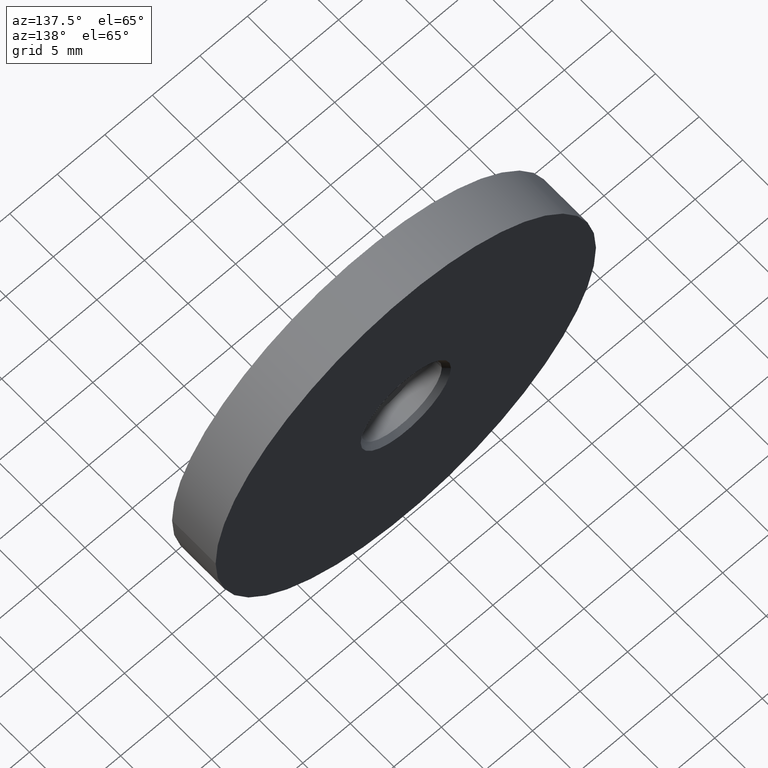
[diagram: clean part render]
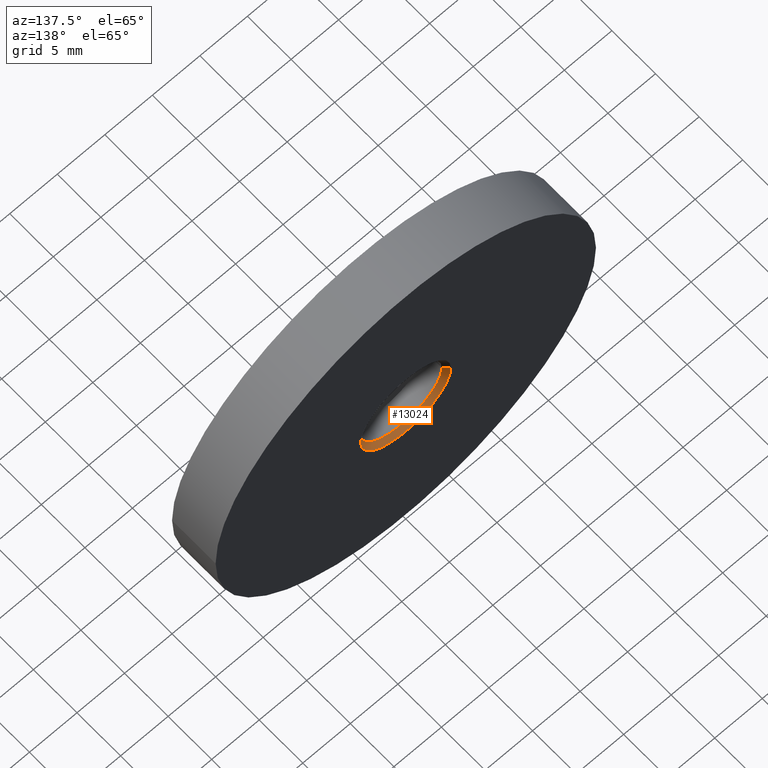
[diagram: same view with one face highlighted and labeled with its STEP entity id]
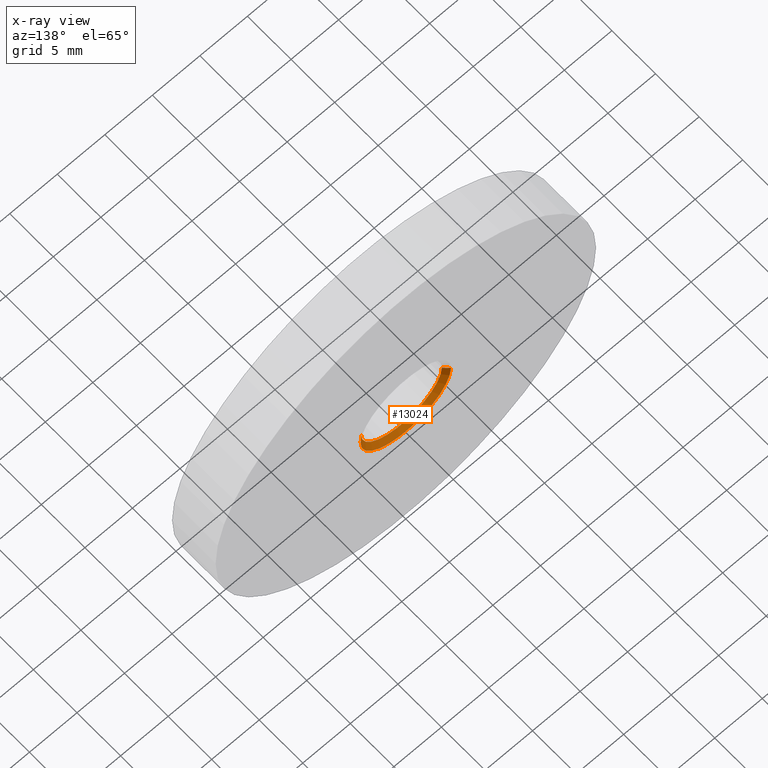
[diagram: x-ray of the same camera — body ghosted, the highlighted face saturated]
A machine part, auxiliary view. The second image highlights one B-rep face of the part: STEP entity #13024.
The next image is the same camera in x-ray: the body ghosted, the highlighted face saturated — about 0% of this face is hidden behind the body in this view.
In plain terms, the highlighted conical surface has half-angle 45 deg.
Its self-contained STEP definition (entity closure, byte-faithful):
#431 = EDGE_CURVE ( 'NONE', #12771, #11239, #8697, .T. ) ;
#717 = CARTESIAN_POINT ( 'NONE',  ( 4.750000000000014211, 4.999999999999984013, 5.817072295949937287E-16 ) ) ;
#813 = CARTESIAN_POINT ( 'NONE',  ( -4.250000000000000888, 4.499999999999997335, 0.000000000000000000 ) ) ;
#1665 = DIRECTION ( 'NONE',  ( -1.000000000000000000, 1.428595803745603429E-15, 0.000000000000000000 ) ) ;
#1824 = CARTESIAN_POINT ( 'NONE',  ( 6.938893903907218911E-15, 4.999999999999990230, 0.000000000000000000 ) ) ;
#1869 = DIRECTION ( 'NONE',  ( 1.387778780781446464E-15, 1.000000000000000000, -0.000000000000000000 ) ) ;
#2016 = ORIENTED_EDGE ( 'NONE', *, *, #13522, .F. ) ;
#2512 = VERTEX_POINT ( 'NONE', #11042 ) ;
#2601 = CARTESIAN_POINT ( 'NONE',  ( 4.250000000000013323, 4.499999999999984901, 5.510910596163098430E-16 ) ) ;
#3090 = EDGE_CURVE ( 'NONE', #7070, #12771, #11401, .T. ) ;
#3403 = AXIS2_PLACEMENT_3D ( 'NONE', #1824, #14288, #13101 ) ;
#3532 = VECTOR ( 'NONE', #8880, 1000.000000000000000 ) ;
#4444 = CARTESIAN_POINT ( 'NONE',  ( -4.750000000000000888, 4.999999999999997335, 0.000000000000000000 ) ) ;
#4866 = DIRECTION ( 'NONE',  ( 0.7071067811865491270, 0.7071067811865459074, 8.659560562354940254E-17 ) ) ;
#5855 = VECTOR ( 'NONE', #4866, 1000.000000000000000 ) ;
#6138 = DIRECTION ( 'NONE',  ( -1.000000000000000000, 1.428595803745603429E-15, 0.000000000000000000 ) ) ;
#6407 = CONICAL_SURFACE ( 'NONE', #11174, 4.250000000000007105, 0.7853981633974491672 ) ;
#6588 = LINE ( 'NONE', #813, #3532 ) ;
#7070 = VERTEX_POINT ( 'NONE', #2601 ) ;
#7354 = DIRECTION ( 'NONE',  ( 1.387778780781446464E-15, 1.000000000000000000, -0.000000000000000000 ) ) ;
#7931 = ORIENTED_EDGE ( 'NONE', *, *, #431, .T. ) ;
#8697 = CIRCLE ( 'NONE', #3403, 4.750000000000007994 ) ;
#8755 = ORIENTED_EDGE ( 'NONE', *, *, #11710, .F. ) ;
#8880 = DIRECTION ( 'NONE',  ( -0.7071067811865471286, 0.7071067811865479058, 0.000000000000000000 ) ) ;
#9307 = EDGE_LOOP ( 'NONE', ( #8755, #9372, #7931, #2016 ) ) ;
#9372 = ORIENTED_EDGE ( 'NONE', *, *, #3090, .T. ) ;
#10677 = AXIS2_PLACEMENT_3D ( 'NONE', #13034, #7354, #6138 ) ;
#10899 = CARTESIAN_POINT ( 'NONE',  ( 6.245004513516496074E-15, 4.499999999999991118, 0.000000000000000000 ) ) ;
#11042 = CARTESIAN_POINT ( 'NONE',  ( -4.250000000000000888, 4.499999999999997335, 0.000000000000000000 ) ) ;
#11174 = AXIS2_PLACEMENT_3D ( 'NONE', #10899, #1869, #1665 ) ;
#11239 = VERTEX_POINT ( 'NONE', #4444 ) ;
#11401 = LINE ( 'NONE', #14138, #5855 ) ;
#11710 = EDGE_CURVE ( 'NONE', #7070, #2512, #14808, .T. ) ;
#12771 = VERTEX_POINT ( 'NONE', #717 ) ;
#13024 = ADVANCED_FACE ( 'NONE', ( #13397 ), #6407, .F. ) ;
#13034 = CARTESIAN_POINT ( 'NONE',  ( 6.245004513516496074E-15, 4.499999999999991118, 0.000000000000000000 ) ) ;
#13101 = DIRECTION ( 'NONE',  ( -1.000000000000000000, 1.460819769243624567E-15, 0.000000000000000000 ) ) ;
#13397 = FACE_OUTER_BOUND ( 'NONE', #9307, .T. ) ;
#13522 = EDGE_CURVE ( 'NONE', #2512, #11239, #6588, .T. ) ;
#14138 = CARTESIAN_POINT ( 'NONE',  ( 4.250000000000013323, 4.499999999999984901, 5.204748896376259574E-16 ) ) ;
#14288 = DIRECTION ( 'NONE',  ( 1.387778780781446464E-15, 1.000000000000000000, -0.000000000000000000 ) ) ;
#14808 = CIRCLE ( 'NONE', #10677, 4.250000000000007105 ) ;